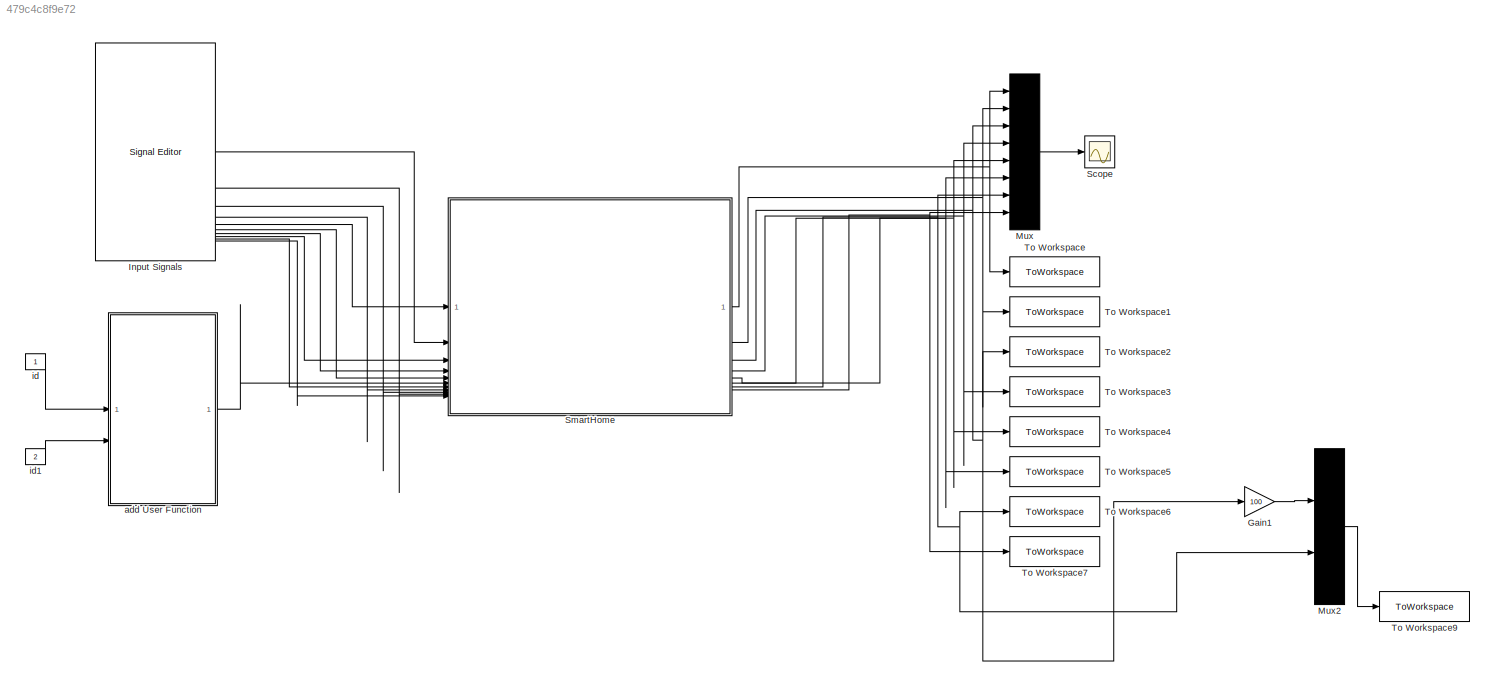
MODEL slx_479c4c8f9e72
KIND model
CONFIG AbsTol = auto
CONFIG EnableMultiTasking = off
CONFIG FixedStep = 1
CONFIG MaxStep = auto
CONFIG MinStep = auto
CONFIG RelTol = 1e-3
CONFIG SampleTimeConstraint = Unconstrained
CONFIG SolverName = FixedStepAuto
CONFIG StartTime = 0.0
CONFIG StopTime = 100
BLOCK [Gain] Gain1
  Gain = 100
BLOCK [Reference] Input Signals  REF=SignalEditorBlockLib/Signal Editor
  LibrarySourceBlock = simulink/Sources/Signal Editor
  SourceBlock = SignalEditorBlockLib/Signal Editor
  SourceType = SignalEditor
  UserDataPersistent = on
BLOCK [Mux] Mux
  DisplayOption = bar
  Inputs = 8
BLOCK [Mux] Mux2
  DisplayOption = bar
  Inputs = 2
BLOCK [Scope] Scope
  Floating = off
  NumInputPorts = 1
  ScopeSpecificationString = Simulink.scopes.TimeScopeBlockCfg('CurrentConfiguration', extmgr.ConfigurationSet(extmgr.Configuration('Core','General UI',true),extmgr.Configuration('Core','Source UI',true),extmgr.Configuration('Sources','WiredSimulink',true),extmgr.Configuration('Visuals','Time Domain',true,'SerializedDisplays',{struct('MinYLimReal','-23.29319','MaxYLimReal','209.63869','YLabelReal','','MinYLimMag','0.00000','M...<+1723ch>
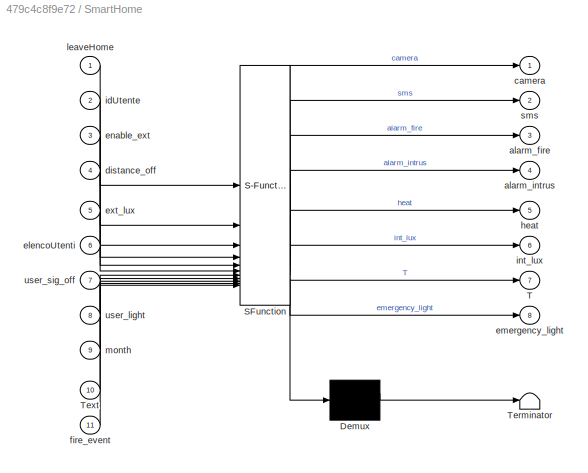
BLOCK [SubSystem] SmartHome
  ErrorFcn = Stateflow.Translate.translate
  PermitHierarchicalResolution = ExplicitOnly
  SFBlockType = Chart
  TreatAsAtomicUnit = on
BLOCK [Demux] SmartHome/ Demux 
  Outputs = 1
BLOCK [S-Function] SmartHome/ SFunction 
  EnableBusSupport = on
  FunctionName = sf_sfun
  Parameters = 20
  PortCounts = [11 9]
  SFcnIsStateOwnerBlock = off
  SFunctionDeploymentMode = off
  Tag = Stateflow S-Function 2
BLOCK [Terminator] SmartHome/ Terminator 
BLOCK [Outport] SmartHome/T
  Port = 7
BLOCK [Inport] SmartHome/Text
  Port = 10
BLOCK [Outport] SmartHome/alarm_fire
  Port = 3
BLOCK [Outport] SmartHome/alarm_intrus
  Port = 4
BLOCK [Outport] SmartHome/camera
BLOCK [Inport] SmartHome/distance_off
  Port = 4
BLOCK [Inport] SmartHome/elencoUtenti
  Port = 6
BLOCK [Outport] SmartHome/emergency_light
  Port = 8
BLOCK [Inport] SmartHome/enable_ext
  Port = 3
BLOCK [Inport] SmartHome/ext_lux
  Port = 5
BLOCK [Inport] SmartHome/fire_event
  Port = 11
BLOCK [Outport] SmartHome/heat
  Port = 5
BLOCK [Inport] SmartHome/idUtente
  Port = 2
BLOCK [Outport] SmartHome/int_lux
  Port = 6
BLOCK [Inport] SmartHome/leaveHome
BLOCK [Inport] SmartHome/month
  Port = 9
BLOCK [Outport] SmartHome/sms
  Port = 2
BLOCK [Inport] SmartHome/user_light
  Port = 8
BLOCK [Inport] SmartHome/user_sig_off
  Port = 7
BLOCK [ToWorkspace] To Workspace
  FixptAsFi = on
  MaxDataPoints = inf
  SampleTime = -1
  SaveFormat = Timeseries
  VariableName = camera
BLOCK [ToWorkspace] To Workspace1
  FixptAsFi = on
  MaxDataPoints = inf
  SampleTime = -1
  SaveFormat = Timeseries
  VariableName = sms
BLOCK [ToWorkspace] To Workspace2
  FixptAsFi = on
  MaxDataPoints = inf
  SampleTime = -1
  SaveFormat = Timeseries
  VariableName = alarm_fire
BLOCK [ToWorkspace] To Workspace3
  FixptAsFi = on
  MaxDataPoints = inf
  SampleTime = -1
  SaveFormat = Timeseries
  VariableName = alarm_intrus
BLOCK [ToWorkspace] To Workspace4
  FixptAsFi = on
  MaxDataPoints = inf
  SampleTime = -1
  SaveFormat = Timeseries
  VariableName = heat
BLOCK [ToWorkspace] To Workspace5
  FixptAsFi = on
  MaxDataPoints = inf
  SampleTime = -1
  SaveFormat = Timeseries
  VariableName = int_lux
BLOCK [ToWorkspace] To Workspace6
  FixptAsFi = on
  MaxDataPoints = inf
  SampleTime = -1
  SaveFormat = Timeseries
  VariableName = T
BLOCK [ToWorkspace] To Workspace7
  FixptAsFi = on
  MaxDataPoints = inf
  SampleTime = -1
  SaveFormat = Timeseries
  VariableName = emergency_light
BLOCK [ToWorkspace] To Workspace9
  FixptAsFi = on
  MaxDataPoints = inf
  SampleTime = -1
  SaveFormat = Timeseries
  VariableName = temperature1
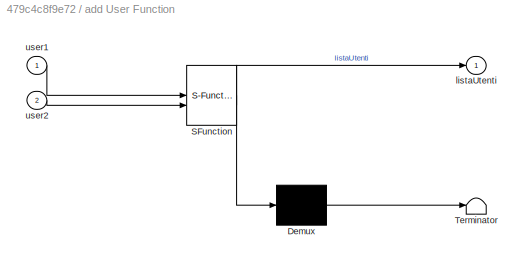
BLOCK [SubSystem] add User Function
  ErrorFcn = Stateflow.Translate.translate
  PermitHierarchicalResolution = ExplicitOnly
  SFBlockType = MATLAB Function
  TreatAsAtomicUnit = on
BLOCK [Demux] add User Function/ Demux 
  Outputs = 1
BLOCK [S-Function] add User Function/ SFunction 
  EnableBusSupport = on
  FunctionName = sf_sfun
  PortCounts = [2 2]
  SFcnIsStateOwnerBlock = off
  SFunctionDeploymentMode = off
  Tag = Stateflow S-Function 1
BLOCK [Terminator] add User Function/ Terminator 
BLOCK [Outport] add User Function/listaUtenti
BLOCK [Inport] add User Function/user1
BLOCK [Inport] add User Function/user2
  Port = 2
BLOCK [Constant] id
  OutDataTypeStr = int32
BLOCK [Constant] id1
  OutDataTypeStr = int32
  Value = 2
LINE Gain1:1 -> Mux2:1
LINE Input Signals:1 -> SmartHome:2
LINE Input Signals:10 -> SmartHome:11
LINE Input Signals:2 -> SmartHome:10
LINE Input Signals:3 -> SmartHome:9
LINE Input Signals:4 -> SmartHome:8
LINE Input Signals:5 -> SmartHome:1
LINE Input Signals:6 -> SmartHome:5
LINE Input Signals:7 -> SmartHome:4
LINE Input Signals:8 -> SmartHome:3
LINE Input Signals:9 -> SmartHome:7
LINE Mux2:1 -> To Workspace9:1
LINE Mux:1 -> Scope:1
NET SmartHome:1 -> Mux:1, To Workspace:1
NET SmartHome:2 -> Mux:2, To Workspace1:1
NET SmartHome:3 -> Gain1:1, Mux:3, To Workspace2:1
NET SmartHome:4 -> Mux:4, To Workspace3:1
NET SmartHome:5 -> Mux:5, To Workspace4:1
NET SmartHome:6 -> Mux:6, To Workspace5:1
NET SmartHome:7 -> Mux2:2, Mux:7, To Workspace6:1
NET SmartHome:8 -> Mux:8, To Workspace7:1
LINE add User Function:1 -> SmartHome:6
LINE id1:1 -> add User Function:2
LINE id:1 -> add User Function:1
note: NET lines group one-source signal fan-out (src -> all destinations, sorted); 1:1 wires keep LINE
CHART add User Function states=1 transitions=1
  STATE_LABEL 'eML_blk_kernel()'
  STATE_LABEL 'SCRIPT:\nfunction listaUtenti = aggiungiUtente(user1, user2)\n\n   listaUtenti = [user1, user2];\n\nend\n'
CHART SmartHome states=30 transitions=43
  STATE_LABEL 'Temperature_detection\n\n'
  STATE_LABEL 'Thermostat\n\ndu:   T = T - 0.01*(T - Text) + pot*T;'
  STATE_LABEL 'Thermostat_ON\n'
  STATE_LABEL 'heating\ndu:\n  heat = 1;\n  pot = 0.005;'
  STATE_LABEL 'cooling\ndu:\n  heat = 0;\n  pot = 0;\n'
  STATE_LABEL '[T >= 22]'
  STATE_LABEL '[T < 17]'
  STATE_LABEL 'Thermostat_OFF\ndu: pot = 0;'
  STATE_LABEL '[ (smartON || enable_ext == 1) && ((month >= 10 && month <= 12) || (month >= 1 && month <= 4))]'
  STATE_LABEL '[(month > 4 && month < 10)]'
  STATE_LABEL 'Fire\ndu:\n   T = T + 0.08*T;\n'
  STATE_LABEL 'Fire_controller\ndu:\n  T = T - 0.1*(T - Text)\n'
  STATE_LABEL '[fire_event == 1]/{send(FIRE_SIG,FirePrevention);\n   send(SEC_STOP, Lighting);\n   send(SEC_STOP, Antitheft);}'
  STATE_LABEL '[T < 30]/{send(FIRE_STOP, FirePrevention);\n   send(SEC_START, Lighting);\n   send(SEC_START, Antitheft);\n}'
  STATE_LABEL '[fire_event == 0]'
  STATE_LABEL 'Thermostat\n\ndu:   T = T - 0.01*(T - Text) + pot*T;'
  STATE_LABEL 'Thermostat_ON\n'
  STATE_LABEL 'heating\ndu:\n  heat = 1;\n  pot = 0.005;'
  STATE_LABEL 'cooling\ndu:\n  heat = 0;\n  pot = 0;\n'
  STATE_LABEL '[T >= 22]'
  STATE_LABEL '[T < 17]'
  STATE_LABEL 'Thermostat_OFF\ndu: pot = 0;'
  STATE_LABEL '[ (smartON || enable_ext == 1) && ((month >= 10 && month <= 12) || (month >= 1 && month <= 4))]'
  STATE_LABEL '[(month > 4 && month < 10)]'
  STATE_LABEL 'Thermostat_ON\n'
  STATE_LABEL 'heating\ndu:\n  heat = 1;\n  pot = 0.005;'
  STATE_LABEL 'cooling\ndu:\n  heat = 0;\n  pot = 0;\n'
  STATE_LABEL '[T >= 22]'
  STATE_LABEL '[T < 17]'
  STATE_LABEL 'heating\ndu:\n  heat = 1;\n  pot = 0.005;'
  STATE_LABEL 'cooling\ndu:\n  heat = 0;\n  pot = 0;\n'
  STATE_LABEL 'Thermostat_OFF\ndu: pot = 0;'
  STATE_LABEL 'Fire\ndu:\n   T = T + 0.08*T;\n'
  STATE_LABEL 'Fire_controller\ndu:\n  T = T - 0.1*(T - Text)\n'
  STATE_LABEL 'Supervisor\ndu: utentePresente = verificaPresenzaUtente(idUtente,elencoUtenti);'
  STATE_LABEL 'utentePresente = verificaPresenzaUtente(idUtente, elencoUtenti)'
  STATE_LABEL "SCRIPT:\nfunction utentePresente = verificaPresenzaUtente(idUtente, elencoUtenti)\n    \n    utentePresente = 0;\n\n    % Itera attraverso gli utenti e verifica la presenza dell'ID\n    for i = 1:length(elencoUtenti)\n        if elencoUtenti(i) == idUtente\n            utentePresente = 1;\n            break; % Se l'utente è presente, esci dal ciclo\n        end\n    end\nend\n"
  STATE_LABEL 'EnableSmart\n'
  STATE_LABEL 'DisableSmart'
  STATE_LABEL 'Thief\n'
CHART  states=0 transitions=0
CHART  states=0 transitions=0
